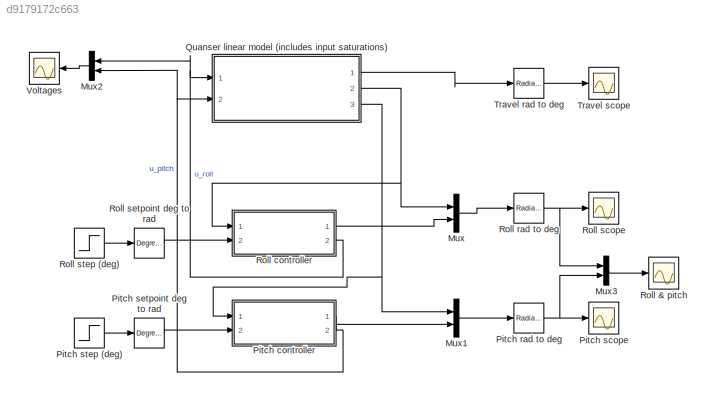
MODEL slx_d9179172c663
KIND model
CONFIG AbsTol = auto
CONFIG EnableMultiTasking = on
CONFIG FixedStep = 0.002
CONFIG MaxStep = auto
CONFIG MinStep = auto
CONFIG RelTol = 1e-3
CONFIG SampleTimeConstraint = Unconstrained
CONFIG Solver = ode1
CONFIG SolverName = ode1
CONFIG StartTime = 0.0
CONFIG StopTime = 60
BLOCK [Mux] Mux
  DisplayOption = bar
  Inputs = 2
  Ports = [2, 1]
BLOCK [Mux] Mux1
  DisplayOption = bar
  Inputs = 2
  Ports = [2, 1]
BLOCK [Mux] Mux2
  DisplayOption = bar
  Inputs = 2
  Ports = [2, 1]
BLOCK [Mux] Mux3
  DisplayOption = bar
  Inputs = 2
  Ports = [2, 1]
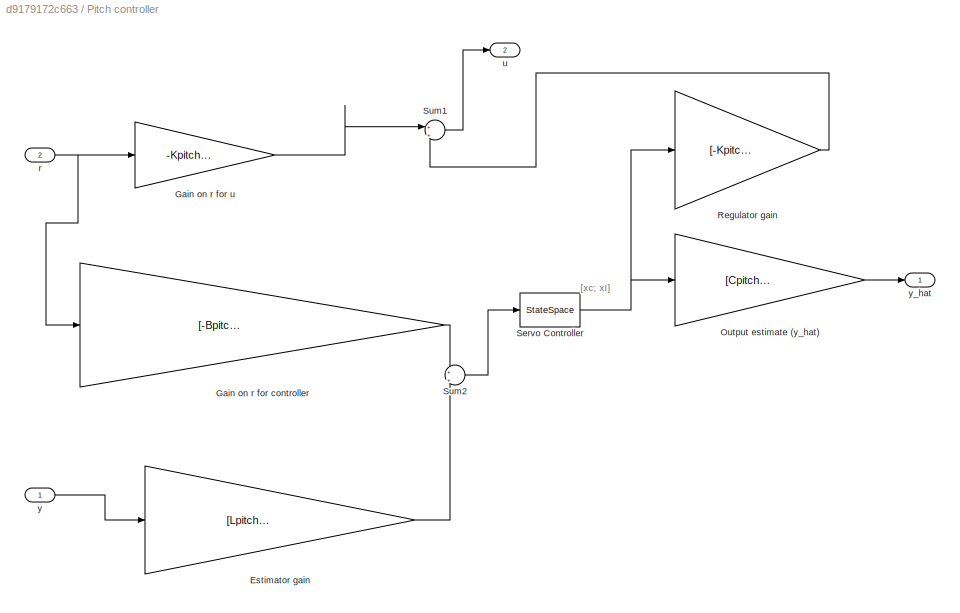
BLOCK [SubSystem] Pitch controller
  Ports = [2, 2]
  RequestExecContextInheritance = off
BLOCK [Gain] Pitch controller/Estimator gain
  Gain = [Lpitch; -eye(1,size(Lpitch,2))]
  Multiplication = Matrix(K*u)
  OutDataTypeStr = Inherit: Inherit via internal rule
  ParamDataTypeStr = Inherit: Inherit via internal rule
  SaturateOnIntegerOverflow = off
BLOCK [Gain] Pitch controller/Gain on r for controller
  Gain = [-Bpitch*Kpitch*Rpitch;eye(1,size(Bpitch*Kpitch*Rpitch,2))]
  Multiplication = Matrix(K*u)
  OutDataTypeStr = Inherit: Inherit via internal rule
  ParamDataTypeStr = Inherit: Inherit via internal rule
  SaturateOnIntegerOverflow = off
BLOCK [Gain] Pitch controller/Gain on r for u
  Gain = -Kpitch*Rpitch
  Multiplication = Matrix(K*u)
  OutDataTypeStr = Inherit: Inherit via internal rule
  ParamDataTypeStr = Inherit: Inherit via internal rule
  SaturateOnIntegerOverflow = off
BLOCK [Gain] Pitch controller/Output estimate (y_hat)
  Gain = [Cpitch zeros(size(Cpitch,1),1)]
  Multiplication = Matrix(K*u)
  OutDataTypeStr = Inherit: Inherit via internal rule
  ParamDataTypeStr = Inherit: Inherit via internal rule
  SaturateOnIntegerOverflow = off
BLOCK [Gain] Pitch controller/Regulator gain
  Gain = [-Kpitch, -KIpitch]
  Multiplication = Matrix(K*u)
  OutDataTypeStr = Inherit: Inherit via internal rule
  ParamDataTypeStr = Inherit: Inherit via internal rule
  SaturateOnIntegerOverflow = off
BLOCK [StateSpace] Pitch controller/Servo Controller
  A = [[Apitch-Lpitch*Cpitch-Bpitch*Kpitch] [-Bpitch*KIpitch]; zeros(1,size(Apitch,2)) zeros(1,size(Bpitch*KIpitch,2))]
  B = eye(size(Apitch)+1)
  C = eye(size(Apitch)+1)
  D = zeros(size(Apitch)+1)
  InitialCondition = [deg2rad(-5) 0 0 0]
  Ports = [1, 1]
BLOCK [Sum] Pitch controller/Sum1
  IconShape = round
  InputSameDT = off
  Inputs = +|+
  OutDataTypeStr = Inherit: Inherit via internal rule
  Ports = [2, 1]
  SaturateOnIntegerOverflow = off
BLOCK [Sum] Pitch controller/Sum2
  IconShape = round
  InputSameDT = off
  Inputs = +|+
  OutDataTypeStr = Inherit: Inherit via internal rule
  Ports = [2, 1]
  SaturateOnIntegerOverflow = off
BLOCK [Inport] Pitch controller/r
  IconDisplay = Port number
  Port = 2
BLOCK [Outport] Pitch controller/u
  IconDisplay = Port number
  Port = 2
BLOCK [Inport] Pitch controller/y
  IconDisplay = Port number
BLOCK [Outport] Pitch controller/y_hat
  IconDisplay = Port number
BLOCK [Reference] Pitch rad to deg  REF=simulink_extras/Transformations/Radians
to Degrees
  Ports = [1, 1]
  SourceBlock = simulink_extras/Transformations/Radians\nto Degrees
  SourceProductBaseCode = SL
  SourceProductName = Simulink
  SourceType = RadiansToDegrees
BLOCK [Scope] Pitch scope
  Floating = off
  NumInputPorts = 1
  Ports = [1]
  ScopeSpecificationString = Simulink.scopes.TimeScopeBlockCfg('CurrentConfiguration', extmgr.ConfigurationSet(extmgr.Configuration('Core','General UI',true,'FigureColor',[1 1 1]),extmgr.Configuration('Core','Source UI',true),extmgr.Configuration('Sources','WiredSimulink',true,'DataLogging',true,'DataLoggingVariableName','pitchscope','DataLoggingSaveFormat','StructureWithTime','DataLoggingMaxPoints','50000','DataLoggingDecima...<+2940ch>
BLOCK [Reference] Pitch setpoint deg to rad  REF=simulink_extras/Transformations/Degrees to
Radians
  Ports = [1, 1]
  SourceBlock = simulink_extras/Transformations/Degrees to\nRadians
  SourceProductBaseCode = SL
  SourceProductName = Simulink
  SourceType = DegreesToRadians
BLOCK [Step] Pitch step (deg)
  After = 10
  SampleTime = 0
  Time = 0
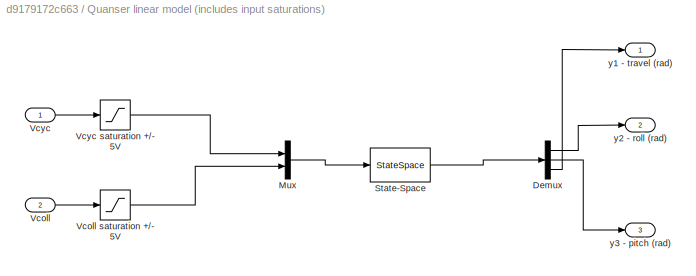
BLOCK [SubSystem] Quanser linear model (includes input saturations)
  Ports = [2, 3]
  RequestExecContextInheritance = off
BLOCK [Demux] Quanser linear model (includes input saturations)/Demux
  DisplayOption = bar
  Outputs = 3
  Ports = [1, 3]
BLOCK [Mux] Quanser linear model (includes input saturations)/Mux
  DisplayOption = bar
  Inputs = 2
  Ports = [2, 1]
BLOCK [StateSpace] Quanser linear model (includes input saturations)/State-Space
  A = A
  B = B
  C = C
  D = zeros(3,2)
  InitialCondition = 0
  Ports = [1, 1]
BLOCK [Inport] Quanser linear model (includes input saturations)/Vcoll
  IconDisplay = Port number
  Port = 2
BLOCK [Saturate] Quanser linear model (includes input saturations)/Vcoll saturation +//- 5V
  InputPortMap = u0
  LowerLimit = -5.0
  Ports = [1, 1]
  UpperLimit = 5.0
BLOCK [Inport] Quanser linear model (includes input saturations)/Vcyc
  IconDisplay = Port number
BLOCK [Saturate] Quanser linear model (includes input saturations)/Vcyc saturation +//- 5V
  InputPortMap = u0
  LowerLimit = -5.0
  Ports = [1, 1]
  UpperLimit = 5.0
BLOCK [Outport] Quanser linear model (includes input saturations)/y1 - travel (rad)
  IconDisplay = Port number
BLOCK [Outport] Quanser linear model (includes input saturations)/y2 - roll (rad)
  IconDisplay = Port number
  Port = 2
BLOCK [Outport] Quanser linear model (includes input saturations)/y3 - pitch (rad)
  IconDisplay = Port number
  Port = 3
BLOCK [Scope] Roll & pitch
  Floating = off
  NumInputPorts = 1
  Ports = [1]
  ScopeSpecificationString = Simulink.scopes.TimeScopeBlockCfg('CurrentConfiguration', extmgr.ConfigurationSet(extmgr.Configuration('Core','General UI',true,'FigureColor',[1 1 1]),extmgr.Configuration('Core','Source UI',true),extmgr.Configuration('Sources','WiredSimulink',true,'DataLogging',true,'DataLoggingVariableName','ScopeData1','DataLoggingSaveFormat','StructureWithTime','DataLoggingMaxPoints','50000','DataLoggingDecima...<+2989ch>
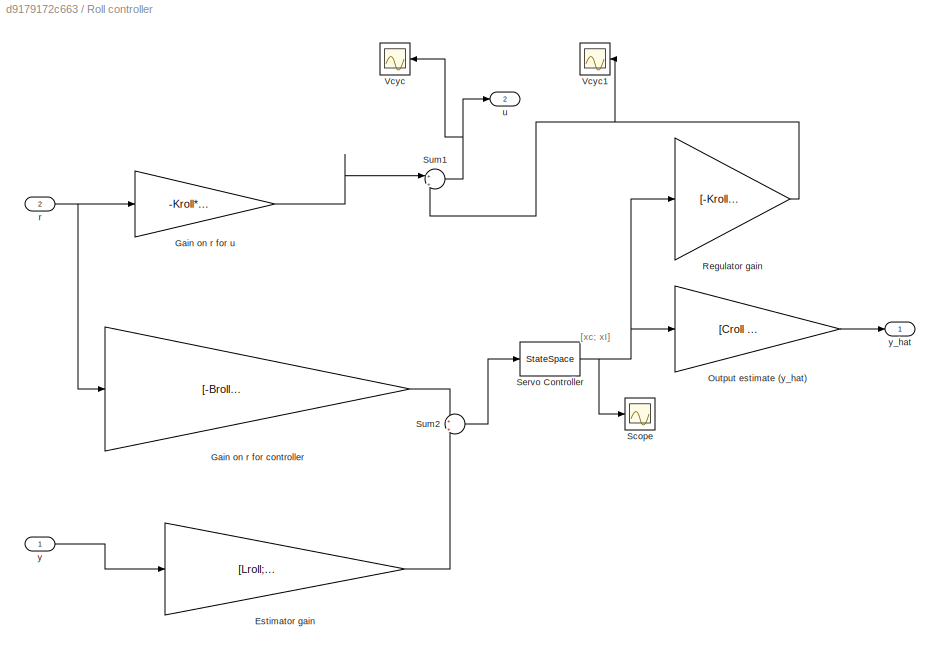
BLOCK [SubSystem] Roll controller
  Ports = [2, 2]
  RequestExecContextInheritance = off
BLOCK [Gain] Roll controller/Estimator gain
  Gain = [Lroll; -eye(1,size(Lroll,2))]
  Multiplication = Matrix(K*u)
  OutDataTypeStr = Inherit: Inherit via internal rule
  ParamDataTypeStr = Inherit: Inherit via internal rule
  SaturateOnIntegerOverflow = off
BLOCK [Gain] Roll controller/Gain on r for controller
  Gain = [-Broll*Kroll*Rroll;eye(1,size(Broll*Kroll*Rroll,2))]
  Multiplication = Matrix(K*u)
  OutDataTypeStr = Inherit: Inherit via internal rule
  ParamDataTypeStr = Inherit: Inherit via internal rule
  SaturateOnIntegerOverflow = off
BLOCK [Gain] Roll controller/Gain on r for u
  Gain = -Kroll*Rroll
  Multiplication = Matrix(K*u)
  OutDataTypeStr = Inherit: Inherit via internal rule
  ParamDataTypeStr = Inherit: Inherit via internal rule
  SaturateOnIntegerOverflow = off
BLOCK [Gain] Roll controller/Output estimate (y_hat)
  Gain = [Croll zeros(size(Croll,1),1)]
  Multiplication = Matrix(K*u)
  OutDataTypeStr = Inherit: Inherit via internal rule
  ParamDataTypeStr = Inherit: Inherit via internal rule
  SaturateOnIntegerOverflow = off
BLOCK [Gain] Roll controller/Regulator gain
  Gain = [-Kroll -KIroll]
  Multiplication = Matrix(K*u)
  OutDataTypeStr = Inherit: Inherit via internal rule
  ParamDataTypeStr = Inherit: Inherit via internal rule
  SaturateOnIntegerOverflow = off
BLOCK [Scope] Roll controller/Scope
  Floating = off
  NumInputPorts = 1
  Ports = [1]
  ScopeSpecificationString = Simulink.scopes.TimeScopeBlockCfg('CurrentConfiguration', extmgr.ConfigurationSet(extmgr.Configuration('Core','General UI',true),extmgr.Configuration('Core','Source UI',true),extmgr.Configuration('Sources','WiredSimulink',true,'DataLoggingVariableName','ScopeData5'),extmgr.Configuration('Visuals','Time Domain',true,'SerializedDisplays',{struct('MinYLimReal','-123.77004','MaxYLimReal','112.01297','...<+1484ch>
BLOCK [StateSpace] Roll controller/Servo Controller
  A = [[Aroll-Lroll*Croll-Broll*Kroll] [-Broll*KIroll]; zeros(1,size(Aroll,2)) zeros(1,size(Broll*KIroll,2))]
  B = eye(size(Aroll)+1)
  C = eye(size(Aroll)+1)
  D = zeros(size(Aroll)+1)
  InitialCondition = [deg2rad(0) 0 0 0]
  Ports = [1, 1]
BLOCK [Sum] Roll controller/Sum1
  IconShape = round
  InputSameDT = off
  Inputs = +|+
  OutDataTypeStr = Inherit: Inherit via internal rule
  Ports = [2, 1]
  SaturateOnIntegerOverflow = off
BLOCK [Sum] Roll controller/Sum2
  IconShape = round
  InputSameDT = off
  Inputs = +|+
  OutDataTypeStr = Inherit: Inherit via internal rule
  Ports = [2, 1]
  SaturateOnIntegerOverflow = off
BLOCK [Scope] Roll controller/Vcyc
  Floating = off
  NumInputPorts = 1
  Ports = [1]
  ScopeSpecificationString = Simulink.scopes.TimeScopeBlockCfg('CurrentConfiguration', extmgr.ConfigurationSet(extmgr.Configuration('Core','General UI',true,'FigureColor',[1 1 1]),extmgr.Configuration('Core','Source UI',true),extmgr.Configuration('Sources','WiredSimulink',true,'DataLogging',true,'DataLoggingVariableName','ScopeData3','DataLoggingSaveFormat','StructureWithTime','DataLoggingMaxPoints','50000','DataLoggingDecima...<+2809ch>
BLOCK [Scope] Roll controller/Vcyc1
  Floating = off
  NumInputPorts = 1
  Ports = [1]
  ScopeSpecificationString = Simulink.scopes.TimeScopeBlockCfg('CurrentConfiguration', extmgr.ConfigurationSet(extmgr.Configuration('Core','General UI',true,'FigureColor',[1 1 1]),extmgr.Configuration('Core','Source UI',true),extmgr.Configuration('Sources','WiredSimulink',true,'DataLogging',true,'DataLoggingVariableName','ScopeData4','DataLoggingSaveFormat','StructureWithTime','DataLoggingMaxPoints','50000','DataLoggingDecima...<+2808ch>
BLOCK [Inport] Roll controller/r
  IconDisplay = Port number
  Port = 2
BLOCK [Outport] Roll controller/u
  IconDisplay = Port number
  Port = 2
BLOCK [Inport] Roll controller/y
  IconDisplay = Port number
BLOCK [Outport] Roll controller/y_hat
  IconDisplay = Port number
BLOCK [Reference] Roll rad to deg  REF=simulink_extras/Transformations/Radians
to Degrees
  Ports = [1, 1]
  SourceBlock = simulink_extras/Transformations/Radians\nto Degrees
  SourceProductBaseCode = SL
  SourceProductName = Simulink
  SourceType = RadiansToDegrees
BLOCK [Scope] Roll scope
  Floating = off
  NumInputPorts = 1
  Ports = [1]
  ScopeSpecificationString = Simulink.scopes.TimeScopeBlockCfg('CurrentConfiguration', extmgr.ConfigurationSet(extmgr.Configuration('Core','General UI',true,'FigureColor',[1 1 1]),extmgr.Configuration('Core','Source UI',true),extmgr.Configuration('Sources','WiredSimulink',true,'DataLogging',true,'DataLoggingVariableName','rollscope','DataLoggingSaveFormat','StructureWithTime','DataLoggingMaxPoints','50000','DataLoggingDecimat...<+2930ch>
BLOCK [Reference] Roll setpoint deg to rad  REF=simulink_extras/Transformations/Degrees to
Radians
  Ports = [1, 1]
  SourceBlock = simulink_extras/Transformations/Degrees to\nRadians
  SourceProductBaseCode = SL
  SourceProductName = Simulink
  SourceType = DegreesToRadians
BLOCK [Step] Roll step (deg)
  After = 20
  SampleTime = 0
  Time = 0
BLOCK [Reference] Travel rad to deg  REF=simulink_extras/Transformations/Radians
to Degrees
  Ports = [1, 1]
  SourceBlock = simulink_extras/Transformations/Radians\nto Degrees
  SourceProductBaseCode = SL
  SourceProductName = Simulink
  SourceType = RadiansToDegrees
BLOCK [Scope] Travel scope
  Floating = off
  NumInputPorts = 1
  Ports = [1]
  ScopeSpecificationString = Simulink.scopes.TimeScopeBlockCfg('CurrentConfiguration', extmgr.ConfigurationSet(extmgr.Configuration('Core','General UI',true,'FigureColor',[1 1 1]),extmgr.Configuration('Core','Source UI',true),extmgr.Configuration('Sources','WiredSimulink',true,'DataLogging',true,'DataLoggingVariableName','travelscope','DataLoggingSaveFormat','StructureWithTime','DataLoggingDecimation','1','DataLoggingDecimate...<+2765ch>
BLOCK [Scope] Voltages 
  Floating = off
  NumInputPorts = 1
  Ports = [1]
  ScopeSpecificationString = Simulink.scopes.TimeScopeBlockCfg('CurrentConfiguration', extmgr.ConfigurationSet(extmgr.Configuration('Core','General UI',true,'FigureColor',[1 1 1]),extmgr.Configuration('Core','Source UI',true),extmgr.Configuration('Sources','WiredSimulink',true,'DataLogging',true,'DataLoggingVariableName','Vcoll1','DataLoggingSaveFormat','StructureWithTime','DataLoggingMaxPoints','50000','DataLoggingDecimation...<+2947ch>
ANNOTATION Pitch controller: [xc; xI]
ANNOTATION Roll controller: [xc; xI]
LINE Mux1:1 -> Pitch rad to deg:1
LINE Mux2:1 -> Voltages :1
LINE Mux3:1 -> Roll & pitch:1
LINE Mux:1 -> Roll rad to deg:1
LINE Pitch controller/Estimator gain:1 -> Pitch controller/Sum2:2
LINE Pitch controller/Gain on r for controller:1 -> Pitch controller/Sum2:1
LINE Pitch controller/Gain on r for u:1 -> Pitch controller/Sum1:1
LINE Pitch controller/Output estimate (y_hat):1 -> Pitch controller/y_hat:1
LINE Pitch controller/Regulator gain:1 -> Pitch controller/Sum1:2
NET Pitch controller/Servo Controller:1 -> Pitch controller/Output estimate (y_hat):1, Pitch controller/Regulator gain:1
LINE Pitch controller/Sum1:1 -> Pitch controller/u:1
LINE Pitch controller/Sum2:1 -> Pitch controller/Servo Controller:1
NET Pitch controller/r:1 -> Pitch controller/Gain on r for controller:1, Pitch controller/Gain on r for u:1
LINE Pitch controller/y:1 -> Pitch controller/Estimator gain:1
LINE Pitch controller:1 -> Mux1:2
NET Pitch controller:2 -> Mux2:2, Quanser linear model (includes input saturations):2
NET Pitch rad to deg:1 -> Mux3:2, Pitch scope:1
LINE Pitch setpoint deg to rad:1 -> Pitch controller:2
LINE Pitch step (deg):1 -> Pitch setpoint deg to rad:1
LINE Quanser linear model (includes input saturations)/Demux:1 -> Quanser linear model (includes input saturations)/y2 - roll (rad):1
LINE Quanser linear model (includes input saturations)/Demux:2 -> Quanser linear model (includes input saturations)/y3 - pitch (rad):1
LINE Quanser linear model (includes input saturations)/Demux:3 -> Quanser linear model (includes input saturations)/y1 - travel (rad):1
LINE Quanser linear model (includes input saturations)/Mux:1 -> Quanser linear model (includes input saturations)/State-Space:1
LINE Quanser linear model (includes input saturations)/State-Space:1 -> Quanser linear model (includes input saturations)/Demux:1
LINE Quanser linear model (includes input saturations)/Vcoll saturation +//- 5V:1 -> Quanser linear model (includes input saturations)/Mux:2
LINE Quanser linear model (includes input saturations)/Vcoll:1 -> Quanser linear model (includes input saturations)/Vcoll saturation +//- 5V:1
LINE Quanser linear model (includes input saturations)/Vcyc saturation +//- 5V:1 -> Quanser linear model (includes input saturations)/Mux:1
LINE Quanser linear model (includes input saturations)/Vcyc:1 -> Quanser linear model (includes input saturations)/Vcyc saturation +//- 5V:1
LINE Quanser linear model (includes input saturations):1 -> Travel rad to deg:1
NET Quanser linear model (includes input saturations):2 -> Mux:1, Roll controller:1
NET Quanser linear model (includes input saturations):3 -> Mux1:1, Pitch controller:1
LINE Roll controller/Estimator gain:1 -> Roll controller/Sum2:2
LINE Roll controller/Gain on r for controller:1 -> Roll controller/Sum2:1
LINE Roll controller/Gain on r for u:1 -> Roll controller/Sum1:1
LINE Roll controller/Output estimate (y_hat):1 -> Roll controller/y_hat:1
NET Roll controller/Regulator gain:1 -> Roll controller/Sum1:2, Roll controller/Vcyc1:1
NET Roll controller/Servo Controller:1 -> Roll controller/Output estimate (y_hat):1, Roll controller/Regulator gain:1, Roll controller/Scope:1
NET Roll controller/Sum1:1 -> Roll controller/Vcyc:1, Roll controller/u:1
LINE Roll controller/Sum2:1 -> Roll controller/Servo Controller:1
NET Roll controller/r:1 -> Roll controller/Gain on r for controller:1, Roll controller/Gain on r for u:1
LINE Roll controller/y:1 -> Roll controller/Estimator gain:1
LINE Roll controller:1 -> Mux:2
NET Roll controller:2 -> Mux2:1, Quanser linear model (includes input saturations):1
NET Roll rad to deg:1 -> Mux3:1, Roll scope:1
LINE Roll setpoint deg to rad:1 -> Roll controller:2
LINE Roll step (deg):1 -> Roll setpoint deg to rad:1
LINE Travel rad to deg:1 -> Travel scope:1
note: NET lines group one-source signal fan-out (src -> all destinations, sorted); 1:1 wires keep LINE
